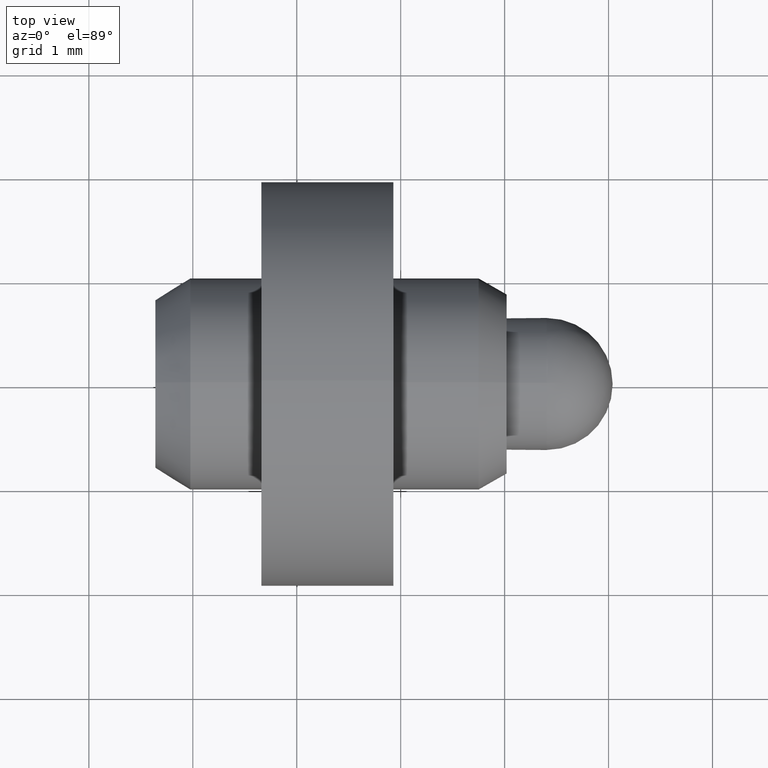
[diagram: clean part render]
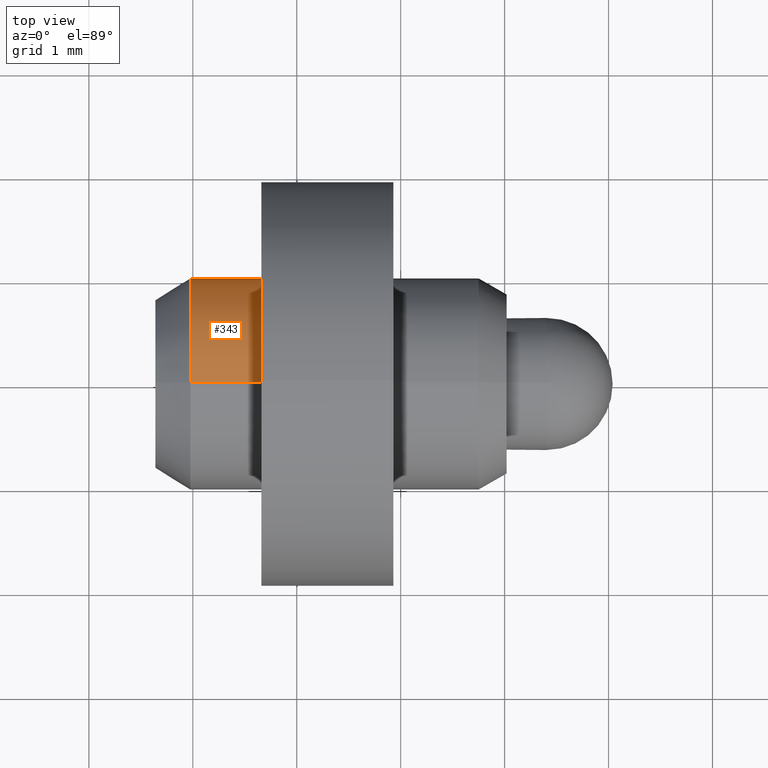
[diagram: same view with one face highlighted and labeled with its STEP entity id]
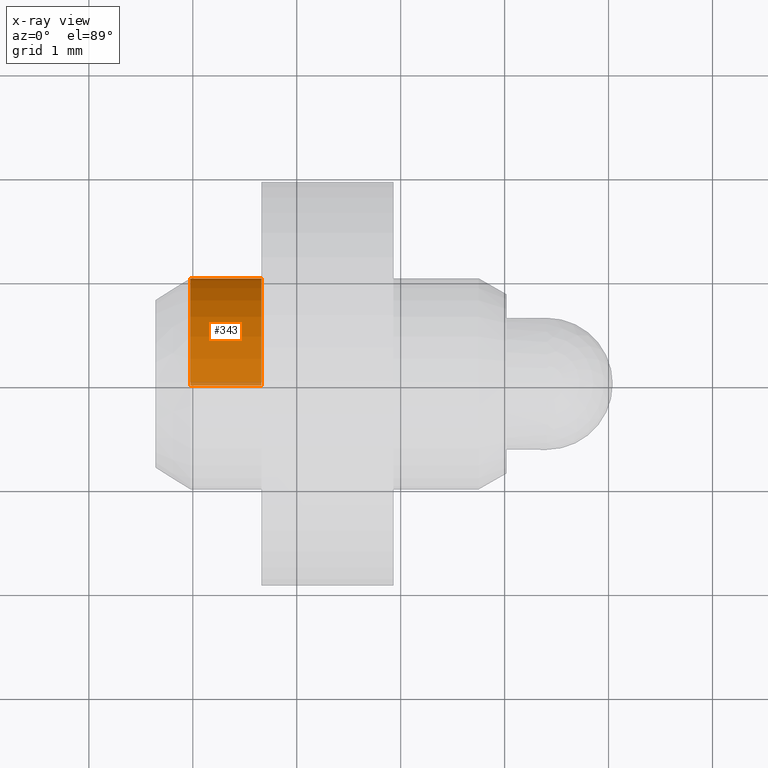
[diagram: x-ray of the same camera — body ghosted, the highlighted face saturated]
A machine part, top view. The second image highlights one B-rep face of the part: STEP entity #343.
The next image is the same camera in x-ray: the body ghosted, the highlighted face saturated — about 3% of this face is hidden behind the body in this view.
In plain terms, the highlighted cylindrical surface (partial cylindrical patch) has radius 1.015 mm, axis along (-1, -0, -0).
Its self-contained STEP definition (entity closure, byte-faithful):
#32 = CARTESIAN_POINT ( 'NONE',  ( -2.023764668175233300, 0.0000000000000000000, 0.0000000000000000000 ) ) ;
#36 = EDGE_CURVE ( 'NONE', #459, #365, #460, .T. ) ;
#37 = EDGE_LOOP ( 'NONE', ( #487, #358, #496, #75 ) ) ;
#75 = ORIENTED_EDGE ( 'NONE', *, *, #243, .F. ) ;
#103 = CARTESIAN_POINT ( 'NONE',  ( -2.023764668175233300, 0.0000000000000000000, 1.014999999999999900 ) ) ;
#105 = DIRECTION ( 'NONE',  ( -1.000000000000000000, -0.0000000000000000000, -0.0000000000000000000 ) ) ;
#106 = DIRECTION ( 'NONE',  ( -1.000000000000000000, -0.0000000000000000000, -0.0000000000000000000 ) ) ;
#124 = CARTESIAN_POINT ( 'NONE',  ( -1.340499362052783000, 1.243016501134563300E-016, -1.014999999999999900 ) ) ;
#128 = FACE_OUTER_BOUND ( 'NONE', #37, .T. ) ;
#130 = AXIS2_PLACEMENT_3D ( 'NONE', #247, #202, #322 ) ;
#144 = DIRECTION ( 'NONE',  ( 0.0000000000000000000, 0.0000000000000000000, 1.000000000000000000 ) ) ;
#154 = CYLINDRICAL_SURFACE ( 'NONE', #130, 1.014999999999999900 ) ;
#183 = AXIS2_PLACEMENT_3D ( 'NONE', #32, #106, #430 ) ;
#190 = CIRCLE ( 'NONE', #366, 1.014999999999999900 ) ;
#194 = DIRECTION ( 'NONE',  ( -1.000000000000000000, -0.0000000000000000000, -0.0000000000000000000 ) ) ;
#199 = VECTOR ( 'NONE', #194, 1000.000000000000000 ) ;
#201 = CARTESIAN_POINT ( 'NONE',  ( -1.340499362052783000, 0.0000000000000000000, 1.014999999999999900 ) ) ;
#202 = DIRECTION ( 'NONE',  ( -1.000000000000000000, -0.0000000000000000000, -0.0000000000000000000 ) ) ;
#243 = EDGE_CURVE ( 'NONE', #284, #459, #410, .T. ) ;
#247 = CARTESIAN_POINT ( 'NONE',  ( -2.360499362052783200, 0.0000000000000000000, 0.0000000000000000000 ) ) ;
#258 = DIRECTION ( 'NONE',  ( -1.000000000000000000, -0.0000000000000000000, -0.0000000000000000000 ) ) ;
#281 = LINE ( 'NONE', #473, #491 ) ;
#284 = VERTEX_POINT ( 'NONE', #201 ) ;
#322 = DIRECTION ( 'NONE',  ( 0.0000000000000000000, 0.0000000000000000000, 1.000000000000000000 ) ) ;
#340 = VERTEX_POINT ( 'NONE', #124 ) ;
#343 = ADVANCED_FACE ( 'NONE', ( #128 ), #154, .T. ) ;
#358 = ORIENTED_EDGE ( 'NONE', *, *, #431, .T. ) ;
#365 = VERTEX_POINT ( 'NONE', #367 ) ;
#366 = AXIS2_PLACEMENT_3D ( 'NONE', #465, #258, #144 ) ;
#367 = CARTESIAN_POINT ( 'NONE',  ( -2.023764668175233300, 1.243016501134563300E-016, -1.014999999999999900 ) ) ;
#393 = CARTESIAN_POINT ( 'NONE',  ( -2.360499362052783200, 0.0000000000000000000, 1.014999999999999900 ) ) ;
#410 = LINE ( 'NONE', #393, #199 ) ;
#430 = DIRECTION ( 'NONE',  ( 0.0000000000000000000, 0.0000000000000000000, 1.000000000000000000 ) ) ;
#431 = EDGE_CURVE ( 'NONE', #340, #365, #281, .T. ) ;
#459 = VERTEX_POINT ( 'NONE', #103 ) ;
#460 = CIRCLE ( 'NONE', #183, 1.014999999999999900 ) ;
#465 = CARTESIAN_POINT ( 'NONE',  ( -1.340499362052783000, 0.0000000000000000000, 0.0000000000000000000 ) ) ;
#473 = CARTESIAN_POINT ( 'NONE',  ( -2.360499362052783200, 1.243016501134563300E-016, -1.014999999999999900 ) ) ;
#487 = ORIENTED_EDGE ( 'NONE', *, *, #519, .T. ) ;
#491 = VECTOR ( 'NONE', #105, 1000.000000000000000 ) ;
#496 = ORIENTED_EDGE ( 'NONE', *, *, #36, .F. ) ;
#519 = EDGE_CURVE ( 'NONE', #284, #340, #190, .T. ) ;